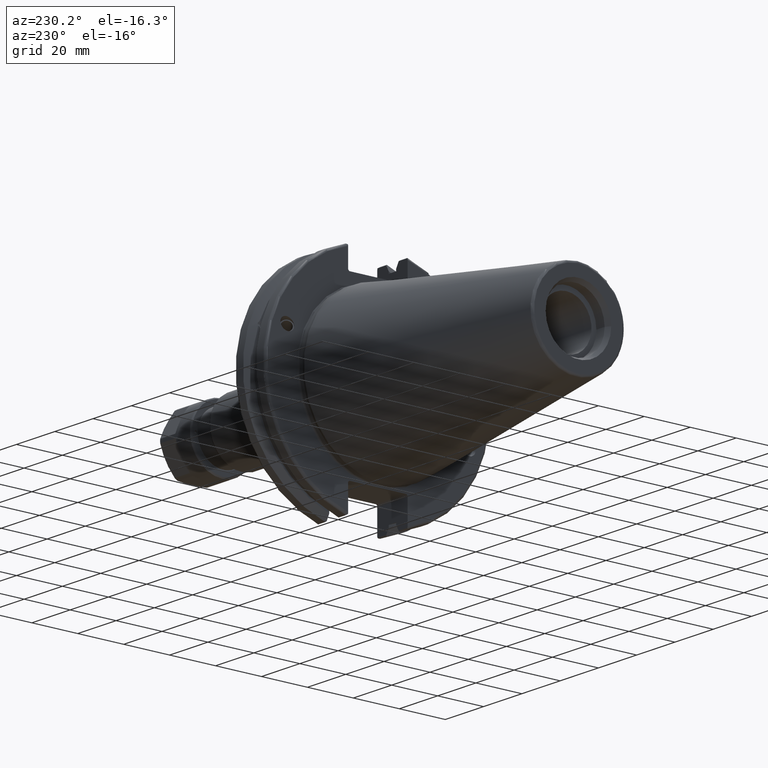
[diagram: clean part render]
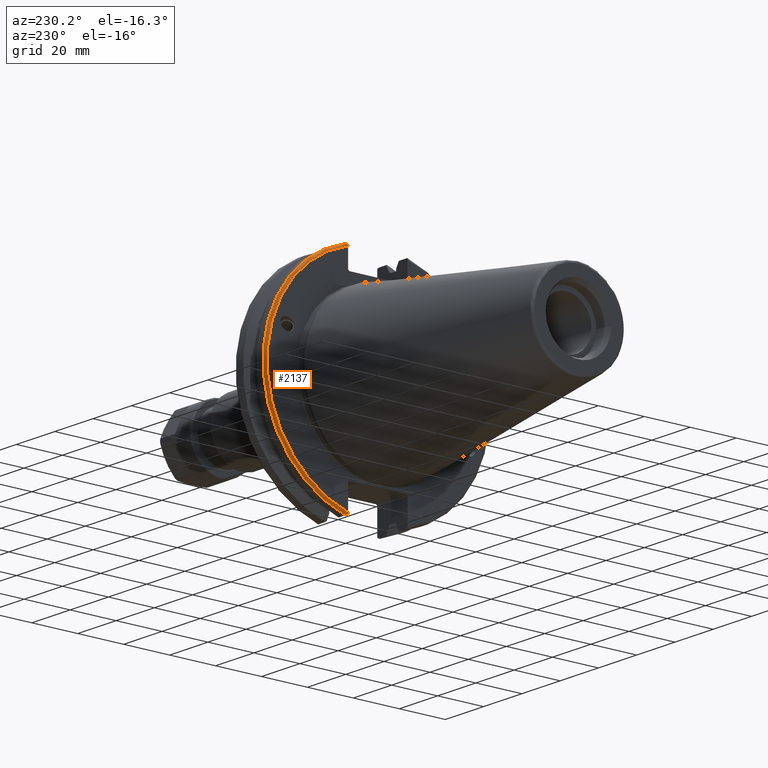
[diagram: same view with one face highlighted and labeled with its STEP entity id]
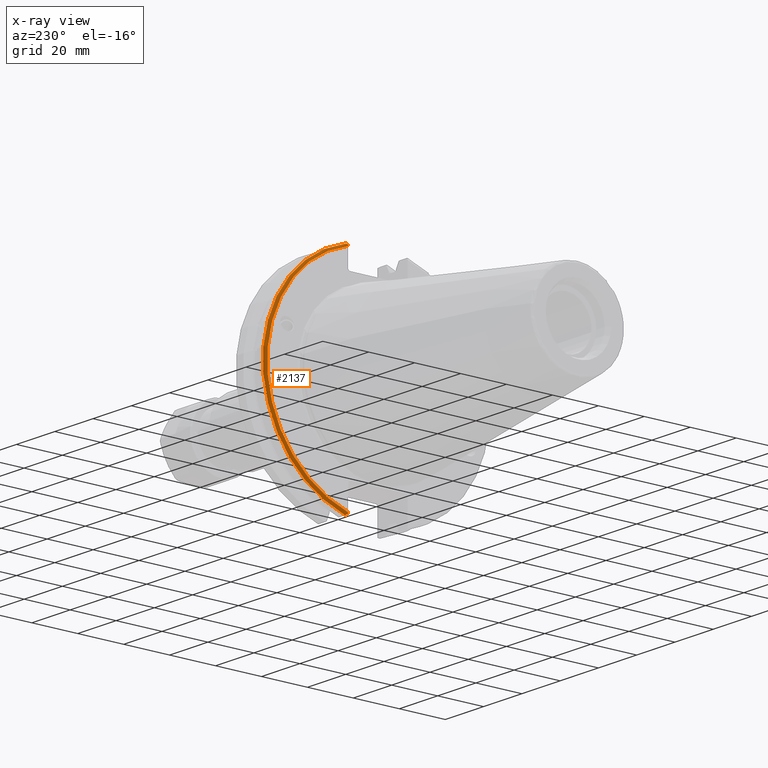
[diagram: x-ray of the same camera — body ghosted, the highlighted face saturated]
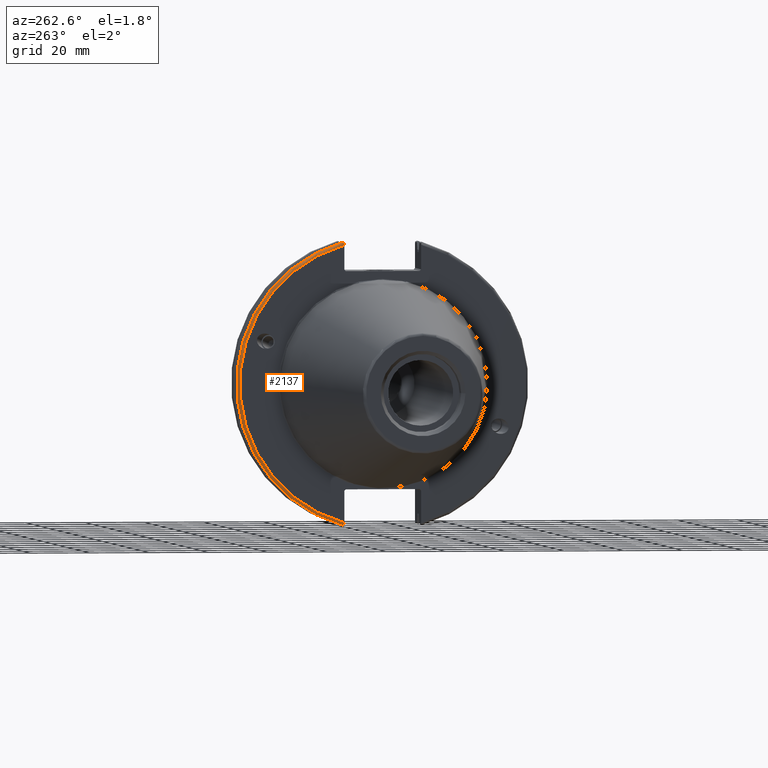
[diagram: same view with one face highlighted and labeled with its STEP entity id]
A machine part, auxiliary view. The second image highlights one B-rep face of the part: STEP entity #2137.
The next image is the same camera in x-ray: the body ghosted, the highlighted face saturated — about 0% of this face is hidden behind the body in this view.
A second angle (auxiliary view) of the same face is appended — the face is thin or edge-on in the first view.
In plain terms, the highlighted toroidal blend (fillet) surface has major radius 48.2125 mm and minor (blend) radius 1 mm.
Its self-contained STEP definition (entity closure, byte-faithful):
#105=TOROIDAL_SURFACE('',#2401,48.2125,1.);
#134=B_SPLINE_CURVE_WITH_KNOTS('',3,(#3869,#3870,#3871,#3872,#3873,#3874),
 .UNSPECIFIED.,.F.,.F.,(4,2,4),(0.0976892167532858,0.112000071948292,0.150881870548587),
 .UNSPECIFIED.);
#143=B_SPLINE_CURVE_WITH_KNOTS('',3,(#3993,#3994,#3995,#3996,#3997,#3998,
#3999,#4000),.UNSPECIFIED.,.F.,.F.,(4,2,2,4),(-0.104075769062722,-0.0730268503455479,
-0.0343639873656265,0.),.UNSPECIFIED.);
#144=B_SPLINE_CURVE_WITH_KNOTS('',3,(#4003,#4004,#4005,#4006,#4007,#4008,
#4009,#4010),.UNSPECIFIED.,.F.,.F.,(4,2,2,4),(0.,0.0343639873656266,0.0730268503455482,
0.104075769062722),.UNSPECIFIED.);
#145=B_SPLINE_CURVE_WITH_KNOTS('',3,(#4011,#4012,#4013,#4014,#4015,#4016),
 .UNSPECIFIED.,.F.,.F.,(4,2,4),(0.452859340315923,0.491741138916218,0.506051994111224),
 .UNSPECIFIED.);
#320=FACE_OUTER_BOUND('',#460,.T.);
#460=EDGE_LOOP('',(#1751,#1752,#1753,#1754,#1755,#1756));
#858=CIRCLE('',#2384,48.2125);
#864=CIRCLE('',#2402,49.2125);
#1020=VERTEX_POINT('',#3812);
#1021=VERTEX_POINT('',#3814);
#1031=VERTEX_POINT('',#3868);
#1051=VERTEX_POINT('',#3991);
#1052=VERTEX_POINT('',#3992);
#1053=VERTEX_POINT('',#4001);
#1263=EDGE_CURVE('',#1021,#1020,#858,.T.);
#1279=EDGE_CURVE('',#1031,#1021,#134,.T.);
#1311=EDGE_CURVE('',#1051,#1052,#143,.T.);
#1312=EDGE_CURVE('',#1052,#1053,#864,.T.);
#1313=EDGE_CURVE('',#1053,#1031,#144,.T.);
#1314=EDGE_CURVE('',#1020,#1051,#145,.T.);
#1751=ORIENTED_EDGE('',*,*,#1311,.T.);
#1752=ORIENTED_EDGE('',*,*,#1312,.T.);
#1753=ORIENTED_EDGE('',*,*,#1313,.T.);
#1754=ORIENTED_EDGE('',*,*,#1279,.T.);
#1755=ORIENTED_EDGE('',*,*,#1263,.T.);
#1756=ORIENTED_EDGE('',*,*,#1314,.T.);
#2137=ADVANCED_FACE('',(#320),#105,.T.);
#2384=AXIS2_PLACEMENT_3D('',#3815,#2792,#2793);
#2401=AXIS2_PLACEMENT_3D('',#3990,#2850,#2851);
#2402=AXIS2_PLACEMENT_3D('',#4002,#2852,#2853);
#2792=DIRECTION('center_axis',(1.,0.,0.));
#2793=DIRECTION('ref_axis',(0.,1.,-6.12323399573677E-17));
#2850=DIRECTION('center_axis',(1.,0.,0.));
#2851=DIRECTION('ref_axis',(0.,0.,-1.));
#2852=DIRECTION('center_axis',(-1.,0.,0.));
#2853=DIRECTION('ref_axis',(0.,1.,-6.12323399573677E-17));
#3812=CARTESIAN_POINT('',(3.175,12.95,46.4407434937254));
#3814=CARTESIAN_POINT('',(3.175,12.95,-46.4407434937254));
#3815=CARTESIAN_POINT('Origin',(3.175,0.,0.));
#3868=CARTESIAN_POINT('',(3.31949794294344,12.95,-46.9780755322918));
#3869=CARTESIAN_POINT('Ctrl Pts',(3.31949794294344,12.95,-46.9780755322918));
#3870=CARTESIAN_POINT('Ctrl Pts',(3.29341556483839,12.95,-46.9333752207329));
#3871=CARTESIAN_POINT('Ctrl Pts',(3.27115672912336,12.95,-46.887363294568));
#3872=CARTESIAN_POINT('Ctrl Pts',(3.20453530071253,12.95,-46.7230464903732));
#3873=CARTESIAN_POINT('Ctrl Pts',(3.175,12.95,-46.5703494890597));
#3874=CARTESIAN_POINT('Ctrl Pts',(3.175,12.95,-46.4407434937254));
#3990=CARTESIAN_POINT('Origin',(4.175,0.,0.));
#3991=CARTESIAN_POINT('',(3.31949794294344,12.95,46.9780755322918));
#3992=CARTESIAN_POINT('',(4.175,13.4317035994433,47.3440544806494));
#3993=CARTESIAN_POINT('Ctrl Pts',(3.31949794294344,12.95,46.9780755322918));
#3994=CARTESIAN_POINT('Ctrl Pts',(3.36785032278754,13.0300321736484,47.0388807469102));
#3995=CARTESIAN_POINT('Ctrl Pts',(3.43235971798504,13.1083611826073,47.0983919657547));
#3996=CARTESIAN_POINT('Ctrl Pts',(3.58507512107923,13.2478194810695,47.2043467509586));
#3997=CARTESIAN_POINT('Ctrl Pts',(3.70638116490965,13.3242014686233,47.2623787015413));
#3998=CARTESIAN_POINT('Ctrl Pts',(3.92661103245834,13.4067722493645,47.3251126473446));
#3999=CARTESIAN_POINT('Ctrl Pts',(4.06045337544791,13.4317035994433,47.3440544806494));
#4000=CARTESIAN_POINT('Ctrl Pts',(4.175,13.4317035994433,47.3440544806494));
#4001=CARTESIAN_POINT('',(4.175,13.4317035994433,-47.3440544806494));
#4002=CARTESIAN_POINT('Origin',(4.175,0.,0.));
#4003=CARTESIAN_POINT('Ctrl Pts',(4.175,13.4317035994433,-47.3440544806494));
#4004=CARTESIAN_POINT('Ctrl Pts',(4.06045337544791,13.4317035994433,-47.3440544806494));
#4005=CARTESIAN_POINT('Ctrl Pts',(3.92661103245834,13.4067722493645,-47.3251126473446));
#4006=CARTESIAN_POINT('Ctrl Pts',(3.70638116490964,13.3242014686232,-47.2623787015413));
#4007=CARTESIAN_POINT('Ctrl Pts',(3.58507512107923,13.2478194810695,-47.2043467509586));
#4008=CARTESIAN_POINT('Ctrl Pts',(3.43235971798504,13.1083611826073,-47.0983919657547));
#4009=CARTESIAN_POINT('Ctrl Pts',(3.36785032278754,13.0300321736484,-47.0388807469102));
#4010=CARTESIAN_POINT('Ctrl Pts',(3.31949794294344,12.95,-46.9780755322918));
#4011=CARTESIAN_POINT('Ctrl Pts',(3.175,12.95,46.4407434937254));
#4012=CARTESIAN_POINT('Ctrl Pts',(3.175,12.95,46.5703494890597));
#4013=CARTESIAN_POINT('Ctrl Pts',(3.20453530071253,12.95,46.7230464903732));
#4014=CARTESIAN_POINT('Ctrl Pts',(3.27115672912336,12.95,46.887363294568));
#4015=CARTESIAN_POINT('Ctrl Pts',(3.29341556483839,12.95,46.9333752207329));
#4016=CARTESIAN_POINT('Ctrl Pts',(3.31949794294344,12.95,46.9780755322918));